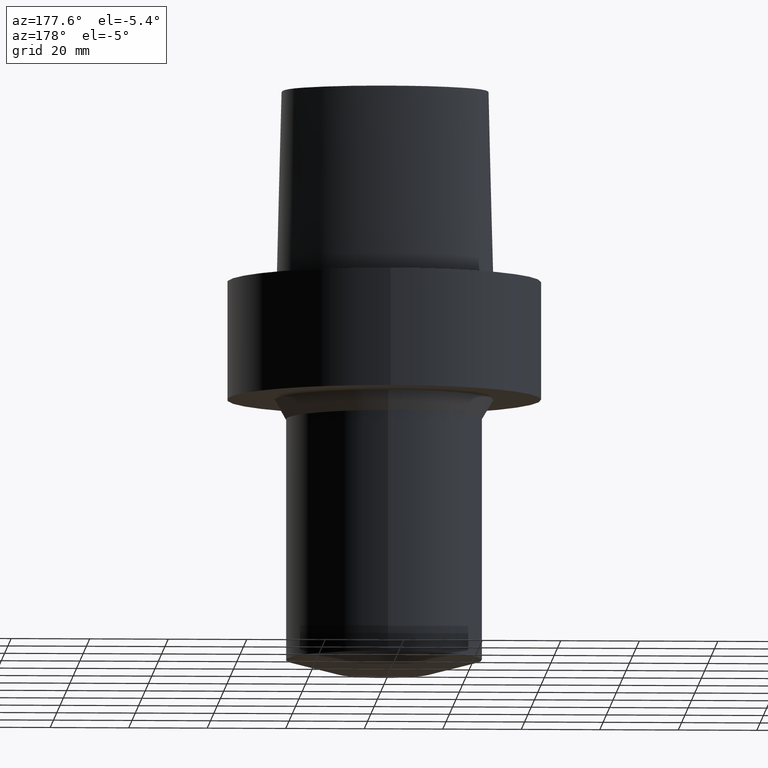
[diagram: clean part render]
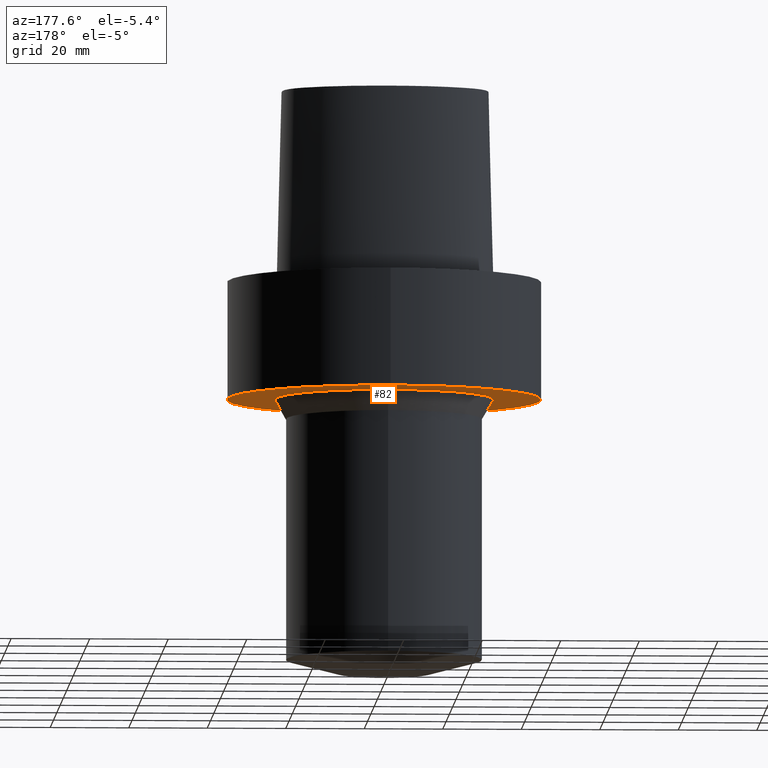
[diagram: same view with one face highlighted and labeled with its STEP entity id]
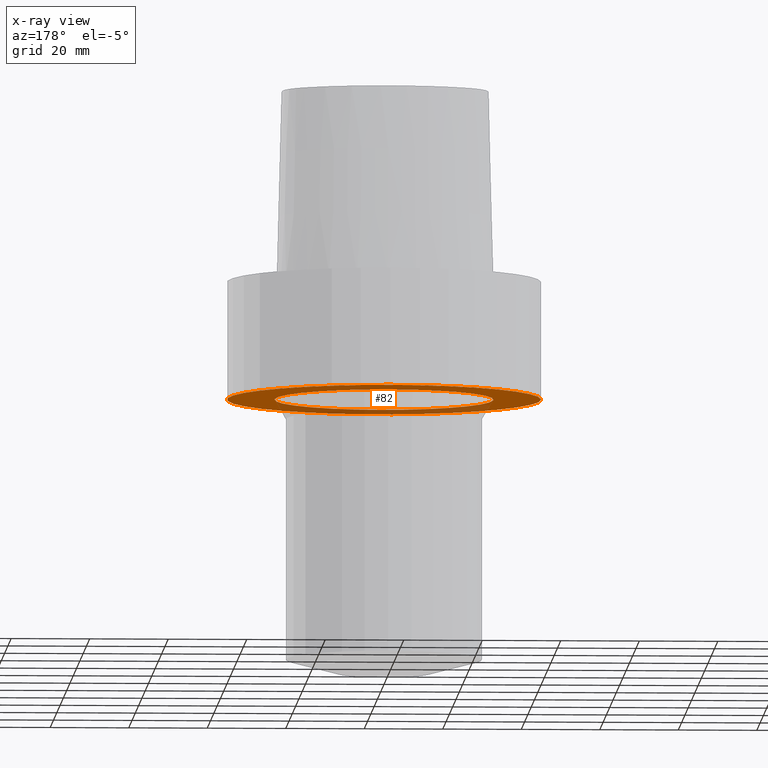
[diagram: x-ray of the same camera — body ghosted, the highlighted face saturated]
A machine part, auxiliary view. The second image highlights one B-rep face of the part: STEP entity #82.
The next image is the same camera in x-ray: the body ghosted, the highlighted face saturated — about 29% of this face is hidden behind the body in this view.
In plain terms, the highlighted planar face has unit normal (0, 0, -1).
Its self-contained STEP definition (entity closure, byte-faithful):
#82=ADVANCED_FACE('',(#103,#104),#105,.T.);
#103=FACE_OUTER_BOUND('',#510,.T.);
#104=FACE_BOUND('',#511,.T.);
#105=PLANE('',#512);
#510=EDGE_LOOP('',(#548));
#511=EDGE_LOOP('',(#549));
#512=AXIS2_PLACEMENT_3D('',#550,#551,#552);
#548=ORIENTED_EDGE('',*,*,#566,.F.);
#549=ORIENTED_EDGE('',*,*,#565,.T.);
#550=CARTESIAN_POINT('',(1.83697019872103E-015,33.939625674709,-30.0));
#551=DIRECTION('',(6.12323399573677E-017,1.22464679914735E-016,-1.0));
#552=DIRECTION('',(1.23259516440783E-032,-1.0,-1.22464679914735E-016));
#565=EDGE_CURVE('',#580,#580,#581,.T.);
#566=EDGE_CURVE('',#582,#582,#583,.T.);
#580=VERTEX_POINT('',#743);
#581=CIRCLE('',#744,27.886751349418);
#582=VERTEX_POINT('',#745);
#583=CIRCLE('',#746,39.9925);
#743=CARTESIAN_POINT('',(1.83697019872103E-015,27.886751349418,-30.0));
#744=AXIS2_PLACEMENT_3D('',#759,#760,#761);
#745=CARTESIAN_POINT('',(1.83697019872103E-015,39.9925,-30.0));
#746=AXIS2_PLACEMENT_3D('',#762,#763,#764);
#759=CARTESIAN_POINT('',(1.83697019872103E-015,3.67394039744206E-015,-30.0));
#760=DIRECTION('',(-6.12323399573676E-017,-1.22464679914735E-016,1.0));
#761=DIRECTION('',(-1.23259516440783E-032,1.0,1.22464679914735E-016));
#762=CARTESIAN_POINT('',(1.83697019872103E-015,3.67394039744206E-015,-30.0));
#763=DIRECTION('',(-6.12323399573677E-017,-1.22464679914735E-016,1.0));
#764=DIRECTION('',(-1.23259516440783E-032,1.0,1.22464679914735E-016));